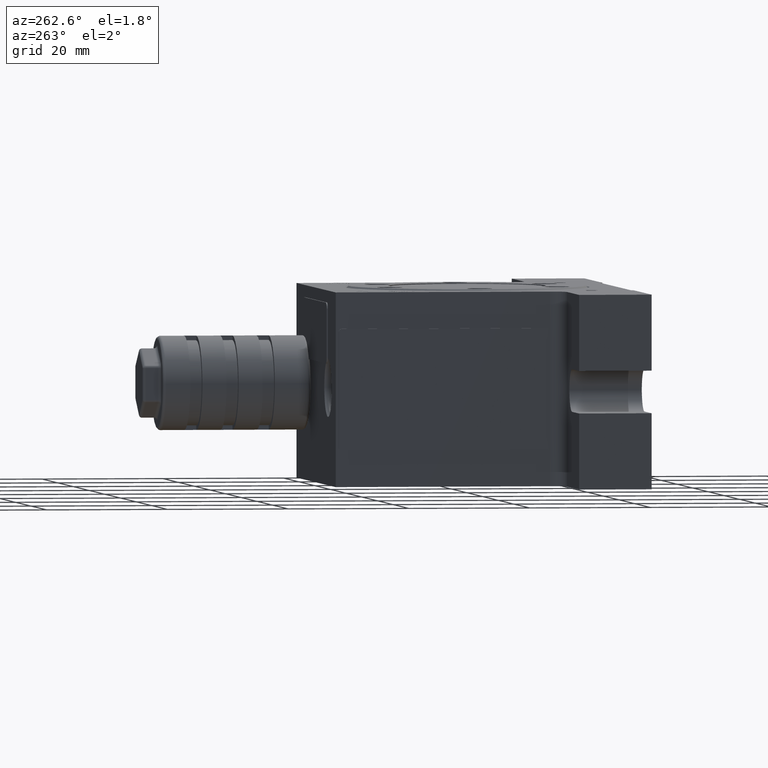
[diagram: clean part render]
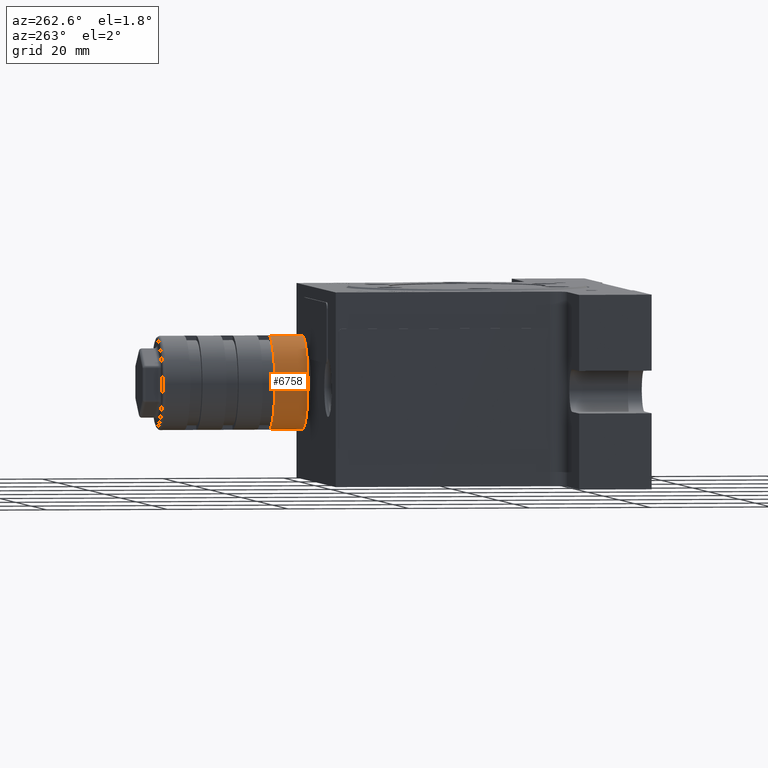
[diagram: same view with one face highlighted and labeled with its STEP entity id]
A machine part, auxiliary view. The second image highlights one B-rep face of the part: STEP entity #6758.
In plain terms, the highlighted cylindrical surface (partial cylindrical patch) has radius 7.75 mm, axis along (0, -1, -0).
Its self-contained STEP definition (entity closure, byte-faithful):
#22 = AXIS2_PLACEMENT_3D ( 'NONE', #21836, #21135, #9177 ) ;
#476 = CARTESIAN_POINT ( 'NONE',  ( 14.24999999999999800, 49.50000000000002100, -7.750000000000010700 ) ) ;
#889 = DIRECTION ( 'NONE',  ( 2.238352872228137200E-016, 0.0000000000000000000, -1.000000000000000000 ) ) ;
#2079 = CIRCLE ( 'NONE', #7541, 7.750000000000003600 ) ;
#2961 = ORIENTED_EDGE ( 'NONE', *, *, #14118, .T. ) ;
#3137 = VECTOR ( 'NONE', #12382, 1000.000000000000000 ) ;
#3171 = ORIENTED_EDGE ( 'NONE', *, *, #18819, .F. ) ;
#3398 = VERTEX_POINT ( 'NONE', #19214 ) ;
#3402 = VERTEX_POINT ( 'NONE', #21410 ) ;
#5003 = ORIENTED_EDGE ( 'NONE', *, *, #13597, .T. ) ;
#5081 = CARTESIAN_POINT ( 'NONE',  ( 14.25000000000000000, 25.50000000000000400, 0.0000000000000000000 ) ) ;
#5396 = CARTESIAN_POINT ( 'NONE',  ( 14.25000000000000000, 31.00000000000000700, 0.0000000000000000000 ) ) ;
#6758 = ADVANCED_FACE ( 'NONE', ( #11648 ), #20402, .T. ) ;
#7541 = AXIS2_PLACEMENT_3D ( 'NONE', #5396, #19733, #25435 ) ;
#9177 = DIRECTION ( 'NONE',  ( -2.238352872228137200E-016, 0.0000000000000000000, 1.000000000000000000 ) ) ;
#9304 = VECTOR ( 'NONE', #16539, 1000.000000000000000 ) ;
#9531 = EDGE_LOOP ( 'NONE', ( #23580, #5003, #2961, #3171 ) ) ;
#11648 = FACE_OUTER_BOUND ( 'NONE', #9531, .T. ) ;
#12382 = DIRECTION ( 'NONE',  ( 5.228563909572968500E-017, -1.000000000000000000, -2.111368100172858900E-017 ) ) ;
#12777 = CIRCLE ( 'NONE', #24935, 7.750000000000003600 ) ;
#13298 = CARTESIAN_POINT ( 'NONE',  ( 14.24999999999999300, 31.00000000000000700, -7.750000000000000000 ) ) ;
#13597 = EDGE_CURVE ( 'NONE', #19945, #3402, #20659, .T. ) ;
#14118 = EDGE_CURVE ( 'NONE', #3402, #3398, #12777, .T. ) ;
#16539 = DIRECTION ( 'NONE',  ( 5.228563909572968500E-017, -1.000000000000000000, -2.111368100172858900E-017 ) ) ;
#17921 = CARTESIAN_POINT ( 'NONE',  ( 14.24999999999998600, 31.00000000000000700, 7.749999999999985800 ) ) ;
#18819 = EDGE_CURVE ( 'NONE', #23373, #3398, #24015, .T. ) ;
#19214 = CARTESIAN_POINT ( 'NONE',  ( 14.24999999999999500, 25.50000000000000400, 7.750000000000000000 ) ) ;
#19733 = DIRECTION ( 'NONE',  ( -5.228563909572968500E-017, 1.000000000000000000, 2.111368100172858900E-017 ) ) ;
#19945 = VERTEX_POINT ( 'NONE', #13298 ) ;
#20402 = CYLINDRICAL_SURFACE ( 'NONE', #22, 7.750000000000003600 ) ;
#20659 = LINE ( 'NONE', #476, #3137 ) ;
#21135 = DIRECTION ( 'NONE',  ( 5.228563909572968500E-017, -1.000000000000000000, -2.111368100172858900E-017 ) ) ;
#21410 = CARTESIAN_POINT ( 'NONE',  ( 14.24999999999999800, 25.50000000000000400, -7.750000000000000000 ) ) ;
#21836 = CARTESIAN_POINT ( 'NONE',  ( 14.24999999999999600, 49.50000000000002100, -6.938893903907228400E-015 ) ) ;
#22537 = EDGE_CURVE ( 'NONE', #19945, #23373, #2079, .T. ) ;
#22585 = CARTESIAN_POINT ( 'NONE',  ( 14.24999999999999500, 49.50000000000002100, 7.749999999999996400 ) ) ;
#23373 = VERTEX_POINT ( 'NONE', #17921 ) ;
#23580 = ORIENTED_EDGE ( 'NONE', *, *, #22537, .F. ) ;
#24015 = LINE ( 'NONE', #22585, #9304 ) ;
#24935 = AXIS2_PLACEMENT_3D ( 'NONE', #5081, #25042, #889 ) ;
#25042 = DIRECTION ( 'NONE',  ( -5.228563909572968500E-017, 1.000000000000000000, 2.111368100172858900E-017 ) ) ;
#25435 = DIRECTION ( 'NONE',  ( 2.238352872228137200E-016, 0.0000000000000000000, -1.000000000000000000 ) ) ;